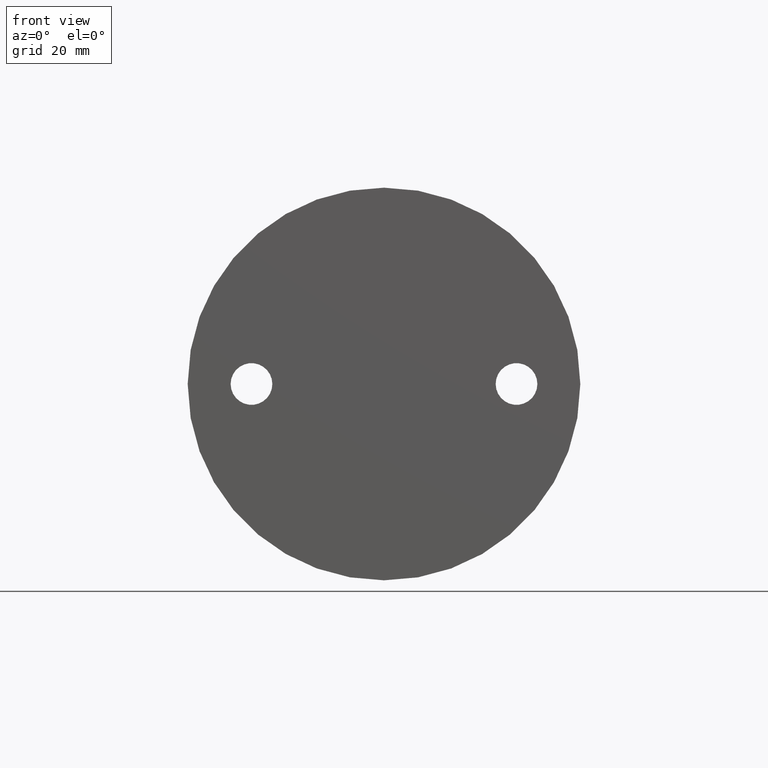
[diagram: clean part render]
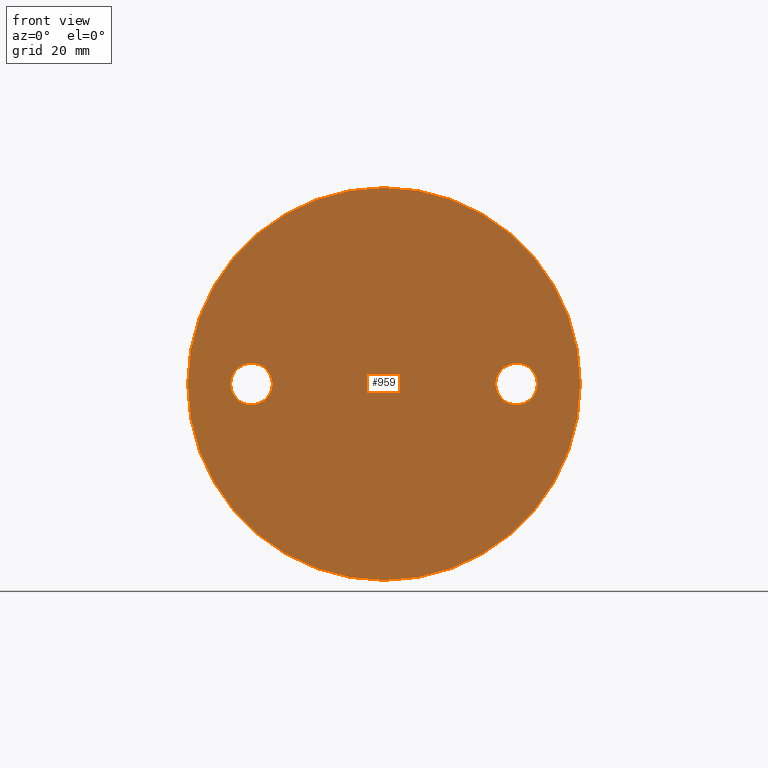
[diagram: same view with one face highlighted and labeled with its STEP entity id]
A machine part, front view. The second image highlights one B-rep face of the part: STEP entity #959.
In plain terms, the highlighted planar face has unit normal (0, -1, 0).
Its self-contained STEP definition (entity closure, byte-faithful):
#95=FACE_BOUND('',#226,.T.);
#96=FACE_BOUND('',#227,.T.);
#107=PLANE('',#1125);
#167=FACE_OUTER_BOUND('',#225,.T.);
#225=EDGE_LOOP('',(#807,#808));
#226=EDGE_LOOP('',(#809,#810));
#227=EDGE_LOOP('',(#811,#812));
#309=CIRCLE('',#1056,4.25);
#310=CIRCLE('',#1057,4.25);
#313=CIRCLE('',#1061,4.25);
#314=CIRCLE('',#1062,4.25);
#335=CIRCLE('',#1098,40.);
#336=CIRCLE('',#1099,40.);
#379=VERTEX_POINT('',#1476);
#380=VERTEX_POINT('',#1477);
#383=VERTEX_POINT('',#1486);
#384=VERTEX_POINT('',#1487);
#431=VERTEX_POINT('',#1807);
#432=VERTEX_POINT('',#1809);
#482=EDGE_CURVE('',#379,#380,#309,.T.);
#483=EDGE_CURVE('',#380,#379,#310,.T.);
#487=EDGE_CURVE('',#383,#384,#313,.T.);
#488=EDGE_CURVE('',#384,#383,#314,.T.);
#551=EDGE_CURVE('',#431,#432,#335,.T.);
#552=EDGE_CURVE('',#432,#431,#336,.T.);
#807=ORIENTED_EDGE('',*,*,#552,.F.);
#808=ORIENTED_EDGE('',*,*,#551,.F.);
#809=ORIENTED_EDGE('',*,*,#482,.T.);
#810=ORIENTED_EDGE('',*,*,#483,.T.);
#811=ORIENTED_EDGE('',*,*,#487,.T.);
#812=ORIENTED_EDGE('',*,*,#488,.T.);
#959=ADVANCED_FACE('',(#167,#95,#96),#107,.T.);
#1056=AXIS2_PLACEMENT_3D('',#1478,#1197,#1198);
#1057=AXIS2_PLACEMENT_3D('',#1479,#1199,#1200);
#1061=AXIS2_PLACEMENT_3D('',#1488,#1208,#1209);
#1062=AXIS2_PLACEMENT_3D('',#1489,#1210,#1211);
#1098=AXIS2_PLACEMENT_3D('',#1810,#1293,#1294);
#1099=AXIS2_PLACEMENT_3D('',#1811,#1295,#1296);
#1125=AXIS2_PLACEMENT_3D('',#1847,#1349,#1350);
#1197=DIRECTION('center_axis',(0.,1.,0.));
#1198=DIRECTION('ref_axis',(1.,0.,0.));
#1199=DIRECTION('center_axis',(0.,1.,0.));
#1200=DIRECTION('ref_axis',(1.,0.,0.));
#1208=DIRECTION('center_axis',(0.,1.,0.));
#1209=DIRECTION('ref_axis',(1.,0.,0.));
#1210=DIRECTION('center_axis',(0.,1.,0.));
#1211=DIRECTION('ref_axis',(1.,0.,0.));
#1293=DIRECTION('center_axis',(0.,1.,0.));
#1294=DIRECTION('ref_axis',(-1.,0.,0.));
#1295=DIRECTION('center_axis',(0.,1.,0.));
#1296=DIRECTION('ref_axis',(-1.,0.,0.));
#1349=DIRECTION('center_axis',(0.,-1.,0.));
#1350=DIRECTION('ref_axis',(0.,0.,-1.));
#1476=CARTESIAN_POINT('',(31.25,0.,0.));
#1477=CARTESIAN_POINT('',(22.75,0.,-5.20474889637625E-16));
#1478=CARTESIAN_POINT('Origin',(27.,0.,0.));
#1479=CARTESIAN_POINT('Origin',(27.,0.,0.));
#1486=CARTESIAN_POINT('',(-22.75,0.,0.));
#1487=CARTESIAN_POINT('',(-31.25,0.,-5.20474889637625E-16));
#1488=CARTESIAN_POINT('Origin',(-27.,0.,0.));
#1489=CARTESIAN_POINT('Origin',(-27.,0.,0.));
#1807=CARTESIAN_POINT('',(40.,-5.55111512312578E-16,-4.89858719658941E-15));
#1809=CARTESIAN_POINT('',(-40.,0.,0.));
#1810=CARTESIAN_POINT('Origin',(0.,0.,0.));
#1811=CARTESIAN_POINT('Origin',(0.,0.,0.));
#1847=CARTESIAN_POINT('Origin',(-20.,0.,0.));